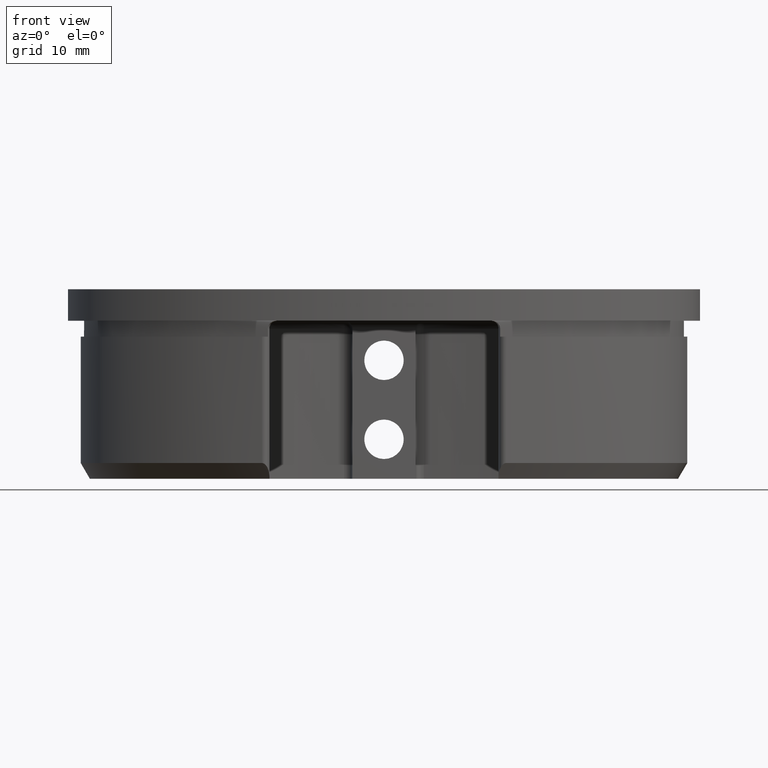
[diagram: clean part render]
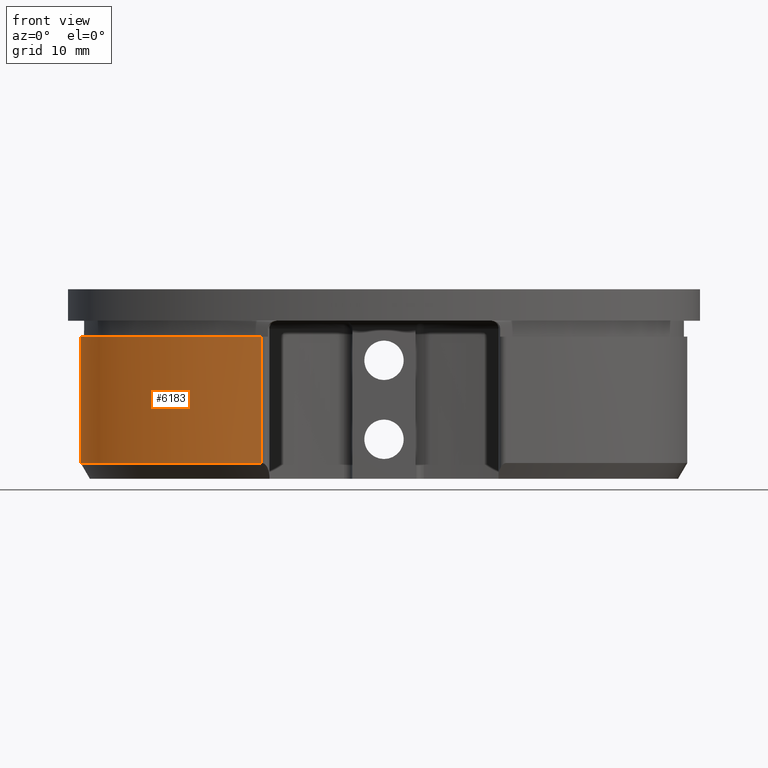
[diagram: same view with one face highlighted and labeled with its STEP entity id]
A machine part, front view. The second image highlights one B-rep face of the part: STEP entity #6183.
In plain terms, the highlighted face is a freeform B-spline surface patch.
Its self-contained STEP definition (entity closure, byte-faithful):
#374 = CARTESIAN_POINT ( 'NONE',  ( -38.40000000000000568, 2.587416071191484514E-13, -18.00000000000000355 ) ) ;
#670 = CARTESIAN_POINT ( 'NONE',  ( -27.15290040312507713, -13.01076477116751562, -18.00000000000000355 ) ) ;
#1677 =( BOUNDED_SURFACE ( )  B_SPLINE_SURFACE ( 3, 1, ( 
 ( #10702, #7920 ),
 ( #8197, #13983 ),
 ( #8070, #5198 ),
 ( #6640, #6514 ) ),
 .UNSPECIFIED., .F., .F., .F. ) 
 B_SPLINE_SURFACE_WITH_KNOTS ( ( 4, 4 ),
 ( 2, 2 ),
 ( 0.000000000000000000, 1.000000000000000000 ),
 ( 0.000000000000000000, 1.000000000000000000 ),
 .UNSPECIFIED. ) 
 GEOMETRIC_REPRESENTATION_ITEM ( )  RATIONAL_B_SPLINE_SURFACE ( (
 ( 1.000000000000000000, 1.000000000000000000),
 ( 0.8916513108083272687, 0.8916513108083272687),
 ( 0.8916513108083272687, 0.8916513108083272687),
 ( 1.000000000000000000, 1.000000000000000000) ) ) 
 REPRESENTATION_ITEM ( '' )  SURFACE ( )  );
#1774 = CARTESIAN_POINT ( 'NONE',  ( -15.46503697432148883, -16.84182312212832855, -20.00000000000000000 ) ) ;
#1842 = ORIENTED_EDGE ( 'NONE', *, *, #15568, .T. ) ;
#2643 = CARTESIAN_POINT ( 'NONE',  ( -27.15290040312507713, -13.01076477116751562, -18.00000000000000355 ) ) ;
#2686 = CARTESIAN_POINT ( 'NONE',  ( -29.82603438972617482, -13.81407556752504107, -1.999999999999998224 ) ) ;
#4833 = CARTESIAN_POINT ( 'NONE',  ( -33.54093318839111504, -9.281007876297218573, -18.00000000000000355 ) ) ;
#5135 = CARTESIAN_POINT ( 'NONE',  ( -27.15290040312507713, -13.01076477116751562, -18.00000000000000355 ) ) ;
#5198 = CARTESIAN_POINT ( 'NONE',  ( -38.40000000000000568, -7.517958495011435538, -2.000000000000000000 ) ) ;
#6134 = CARTESIAN_POINT ( 'NONE',  ( -38.40000000000000568, 0.000000000000000000, -1.999999999999998224 ) ) ;
#6183 = ADVANCED_FACE ( 'NONE', ( #17759 ), #1677, .F. ) ;
#6260 = CARTESIAN_POINT ( 'NONE',  ( -15.46503697432148883, -16.84182312212832855, -1.999999999999998224 ) ) ;
#6514 = CARTESIAN_POINT ( 'NONE',  ( -38.40000000000000568, 0.000000000000000000, -1.999999999999998224 ) ) ;
#6592 = VERTEX_POINT ( 'NONE', #12422 ) ;
#6620 = DIRECTION ( 'NONE',  ( -0.000000000000000000, -0.000000000000000000, 1.000000000000000000 ) ) ;
#6628 = ORIENTED_EDGE ( 'NONE', *, *, #15621, .T. ) ;
#6640 = CARTESIAN_POINT ( 'NONE',  ( -38.40000000000000568, 0.000000000000000000, -18.00000000000000355 ) ) ;
#6906 = VERTEX_POINT ( 'NONE', #2643 ) ;
#6923 = EDGE_CURVE ( 'NONE', #10375, #13291, #6984, .T. ) ;
#6984 =( BOUNDED_CURVE ( )  B_SPLINE_CURVE ( 3, ( #17577, #2686, #10026, #13050 ),
 .UNSPECIFIED., .F., .T. ) 
 B_SPLINE_CURVE_WITH_KNOTS ( ( 4, 4 ),
 ( 5.126892275447272773, 6.283185307179586232 ),
 .UNSPECIFIED. ) 
 CURVE ( )  GEOMETRIC_REPRESENTATION_ITEM ( )  RATIONAL_B_SPLINE_CURVE ( ( 1.000000000000000000, 0.8916513108083272687, 0.8916513108083272687, 1.000000000000000000 ) ) 
 REPRESENTATION_ITEM ( '' )  );
#7356 = EDGE_CURVE ( 'NONE', #7788, #6906, #9867, .T. ) ;
#7788 = VERTEX_POINT ( 'NONE', #12290 ) ;
#7802 = VERTEX_POINT ( 'NONE', #14070 ) ;
#7920 = CARTESIAN_POINT ( 'NONE',  ( -15.46503697432148883, -16.84182312212832855, -1.999999999999998224 ) ) ;
#8032 = ORIENTED_EDGE ( 'NONE', *, *, #12158, .T. ) ;
#8070 = CARTESIAN_POINT ( 'NONE',  ( -38.40000000000000568, -7.517958495011435538, -18.00000000000000711 ) ) ;
#8197 = CARTESIAN_POINT ( 'NONE',  ( -29.82603438972617482, -13.81407556752504107, -18.00000000000000711 ) ) ;
#8348 = CARTESIAN_POINT ( 'NONE',  ( -37.41301492609532175, -4.801742414355524957, -18.00000000000000355 ) ) ;
#8903 = LINE ( 'NONE', #1774, #19450 ) ;
#9683 = CARTESIAN_POINT ( 'NONE',  ( -30.73023748240438024, -11.29662408664397688, -18.00000000000000355 ) ) ;
#9867 =( BOUNDED_CURVE ( )  B_SPLINE_CURVE ( 3, ( #18205, #4833, #9683, #670 ),
 .UNSPECIFIED., .F., .F. ) 
 B_SPLINE_CURVE_WITH_KNOTS ( ( 4, 4 ),
 ( 0.3926990808433077351, 0.7853981631926213458 ),
 .UNSPECIFIED. ) 
 CURVE ( )  GEOMETRIC_REPRESENTATION_ITEM ( )  RATIONAL_B_SPLINE_CURVE ( ( 1.000000000000000000, 0.9871901868931791668, 0.9871901868931791668, 1.000000000000000000 ) ) 
 REPRESENTATION_ITEM ( '' )  );
#10026 = CARTESIAN_POINT ( 'NONE',  ( -38.40000000000000568, -7.517958495011435538, -1.999999999999998224 ) ) ;
#10119 = EDGE_LOOP ( 'NONE', ( #14425, #8032, #13400, #6628, #1842, #11952 ) ) ;
#10375 = VERTEX_POINT ( 'NONE', #6260 ) ;
#10702 = CARTESIAN_POINT ( 'NONE',  ( -15.46503697432148883, -16.84182312212832855, -18.00000000000000355 ) ) ;
#10708 =( BOUNDED_CURVE ( )  B_SPLINE_CURVE ( 3, ( #374, #15706, #8348, #17223 ),
 .UNSPECIFIED., .F., .F. ) 
 B_SPLINE_CURVE_WITH_KNOTS ( ( 4, 4 ),
 ( 0.000000000000000000, 0.3926990808433077351 ),
 .UNSPECIFIED. ) 
 CURVE ( )  GEOMETRIC_REPRESENTATION_ITEM ( )  RATIONAL_B_SPLINE_CURVE ( ( 1.000000000000000000, 0.9871901869911147154, 0.9871901869911147154, 1.000000000000000000 ) ) 
 REPRESENTATION_ITEM ( '' )  );
#11952 = ORIENTED_EDGE ( 'NONE', *, *, #6923, .T. ) ;
#12158 = EDGE_CURVE ( 'NONE', #6592, #7788, #10708, .T. ) ;
#12290 = CARTESIAN_POINT ( 'NONE',  ( -35.47697406100379425, -7.041375140976097846, -18.00000000000000355 ) ) ;
#12422 = CARTESIAN_POINT ( 'NONE',  ( -38.40000000000000568, 2.587416071191484514E-13, -18.00000000000000355 ) ) ;
#12756 =( BOUNDED_CURVE ( )  B_SPLINE_CURVE ( 3, ( #5135, #15226, #15628, #17143 ),
 .UNSPECIFIED., .F., .F. ) 
 B_SPLINE_CURVE_WITH_KNOTS ( ( 4, 4 ),
 ( 0.7853981631926213458, 1.156293031732313681 ),
 .UNSPECIFIED. ) 
 CURVE ( )  GEOMETRIC_REPRESENTATION_ITEM ( )  RATIONAL_B_SPLINE_CURVE ( ( 1.000000000000000000, 0.9885692321729371290, 0.9885692321729371290, 1.000000000000000000 ) ) 
 REPRESENTATION_ITEM ( '' )  );
#13050 = CARTESIAN_POINT ( 'NONE',  ( -38.40000000000000568, 0.000000000000000000, -1.999999999999998224 ) ) ;
#13144 = LINE ( 'NONE', #18484, #18288 ) ;
#13291 = VERTEX_POINT ( 'NONE', #6134 ) ;
#13400 = ORIENTED_EDGE ( 'NONE', *, *, #7356, .T. ) ;
#13983 = CARTESIAN_POINT ( 'NONE',  ( -29.82603438972617482, -13.81407556752504107, -2.000000000000000000 ) ) ;
#14070 = CARTESIAN_POINT ( 'NONE',  ( -15.46503697432148883, -16.84182312212832855, -18.00000000000000355 ) ) ;
#14425 = ORIENTED_EDGE ( 'NONE', *, *, #16042, .F. ) ;
#15226 = CARTESIAN_POINT ( 'NONE',  ( -23.77655738983988343, -14.62859579902942286, -18.00000000000000355 ) ) ;
#15568 = EDGE_CURVE ( 'NONE', #7802, #10375, #8903, .T. ) ;
#15621 = EDGE_CURVE ( 'NONE', #6906, #7802, #12756, .T. ) ;
#15628 = CARTESIAN_POINT ( 'NONE',  ( -19.83555422134726598, -15.92038135006594501, -18.00000000000000355 ) ) ;
#15706 = CARTESIAN_POINT ( 'NONE',  ( -38.40000000000000568, -2.424160993954757259, -18.00000000000000355 ) ) ;
#16042 = EDGE_CURVE ( 'NONE', #6592, #13291, #13144, .T. ) ;
#17143 = CARTESIAN_POINT ( 'NONE',  ( -15.46503697432148883, -16.84182312212832855, -18.00000000000000355 ) ) ;
#17223 = CARTESIAN_POINT ( 'NONE',  ( -35.47697406100379425, -7.041375140976097846, -18.00000000000000355 ) ) ;
#17577 = CARTESIAN_POINT ( 'NONE',  ( -15.46503697432148883, -16.84182312212832855, -1.999999999999998224 ) ) ;
#17759 = FACE_OUTER_BOUND ( 'NONE', #10119, .T. ) ;
#18102 = DIRECTION ( 'NONE',  ( -0.000000000000000000, -0.000000000000000000, 1.000000000000000000 ) ) ;
#18205 = CARTESIAN_POINT ( 'NONE',  ( -35.47697406100379425, -7.041375140976097846, -18.00000000000000355 ) ) ;
#18288 = VECTOR ( 'NONE', #6620, 1000.000000000000000 ) ;
#18484 = CARTESIAN_POINT ( 'NONE',  ( -38.40000000000000568, 0.000000000000000000, -20.00000000000000000 ) ) ;
#19450 = VECTOR ( 'NONE', #18102, 1000.000000000000000 ) ;